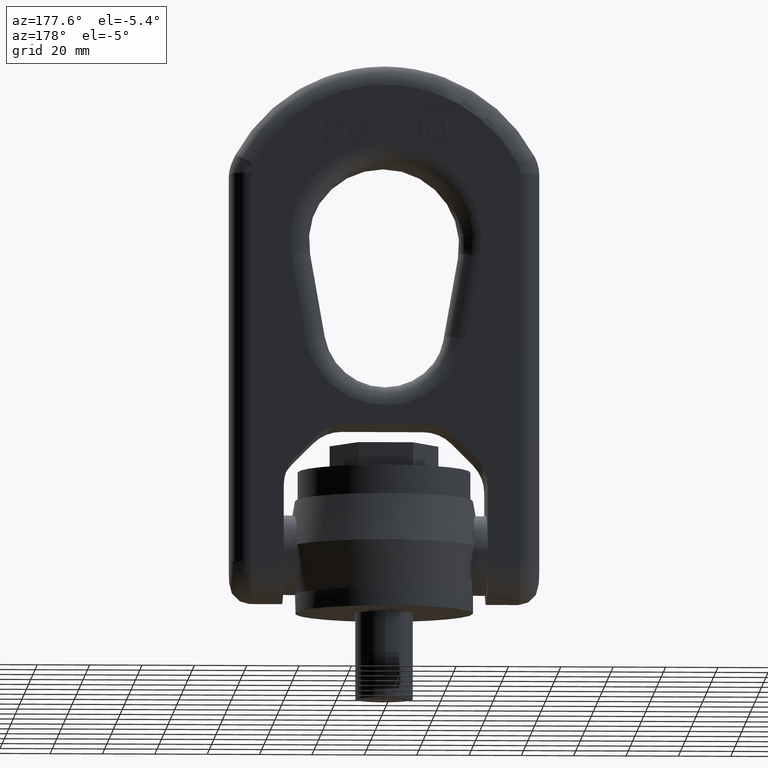
[diagram: clean part render]
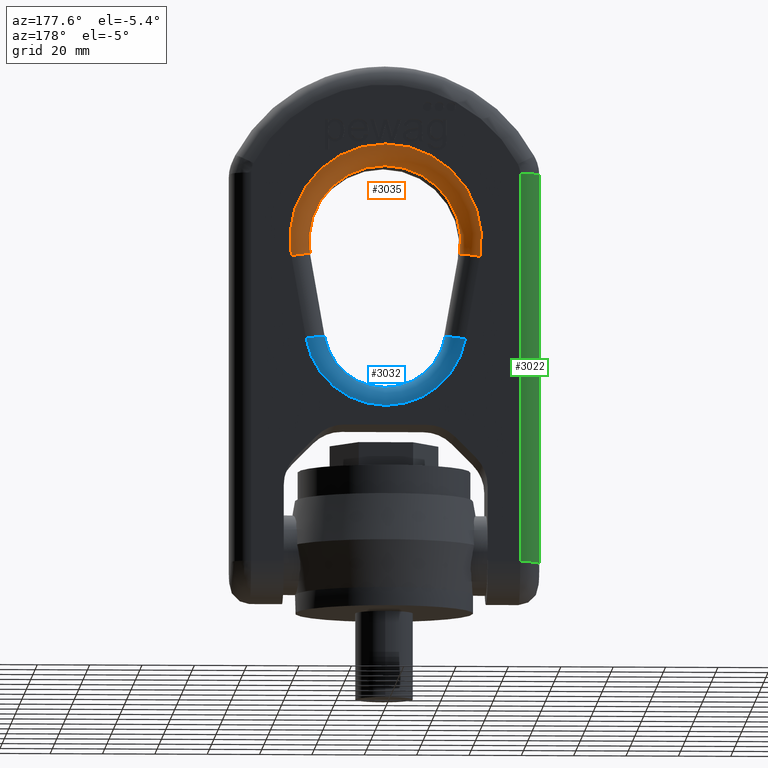
[diagram: same view with three faces highlighted in distinct colors, each labeled with its STEP entity id]
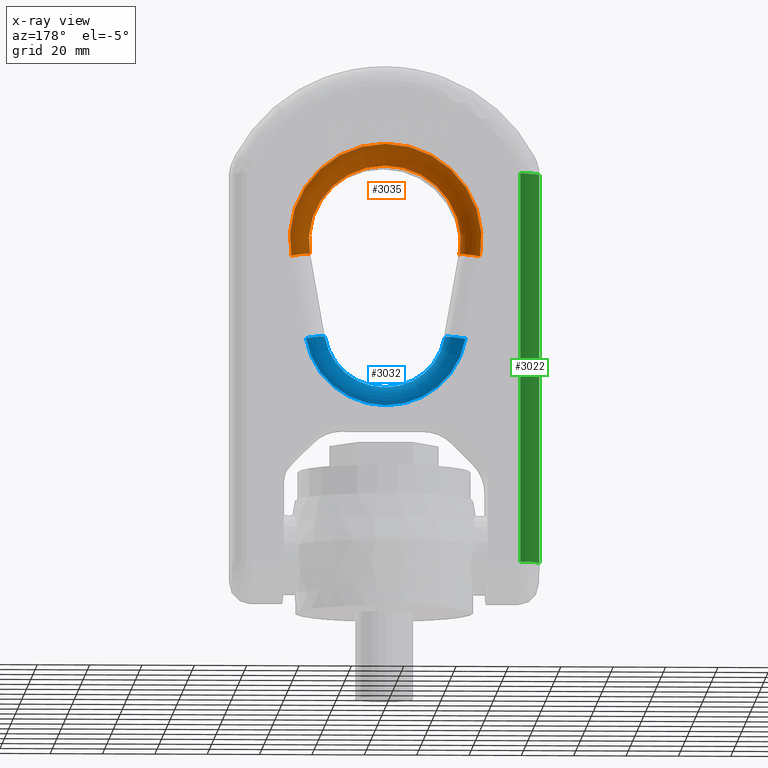
[diagram: x-ray of the same camera — body ghosted, the three highlighted faces saturated]
A machine part, auxiliary view with three faces highlighted in distinct colors.
The next image is the same camera in x-ray (body ghosted, the three faces saturated) — at least one of them is partly hidden behind the body in this view.
Their STEP definitions:

[orange] entity #3035 — the highlighted toroidal blend (fillet) surface has major radius 36.6 mm and minor (blend) radius 7.6 mm.
#204=TOROIDAL_SURFACE('',#6055,36.6,7.6);
#2660=FACE_OUTER_BOUND('',#3428,.T.);
#3035=ADVANCED_FACE('',(#2660),#204,.T.);
#3428=EDGE_LOOP('',(#4677,#4678,#4679,#4680));
#4677=ORIENTED_EDGE('',*,*,#5743,.T.);
#4678=ORIENTED_EDGE('',*,*,#5354,.F.);
#4679=ORIENTED_EDGE('',*,*,#5744,.T.);
#4680=ORIENTED_EDGE('',*,*,#5264,.F.);
#4828=VERTEX_POINT('',#7397);
#4829=VERTEX_POINT('',#7399);
#4913=VERTEX_POINT('',#7725);
#4915=VERTEX_POINT('',#7731);
#5264=EDGE_CURVE('',#4828,#4829,#5775,.T.);
#5354=EDGE_CURVE('',#4913,#4915,#5787,.T.);
#5743=EDGE_CURVE('',#4828,#4915,#5821,.T.);
#5744=EDGE_CURVE('',#4913,#4829,#5822,.T.);
#5775=CIRCLE('',#5882,36.6);
#5787=CIRCLE('',#5896,29.);
#5821=CIRCLE('',#6051,7.6);
#5822=CIRCLE('',#6053,7.6);
#5882=AXIS2_PLACEMENT_3D('',#7398,#6261,#6262);
#5896=AXIS2_PLACEMENT_3D('',#7730,#6333,#6334);
#6051=AXIS2_PLACEMENT_3D('',#9832,#6910,#6911);
#6053=AXIS2_PLACEMENT_3D('',#9834,#6914,#6915);
#6055=AXIS2_PLACEMENT_3D('',#9836,#6918,#6919);
#6261=DIRECTION('',(-2.34291072916505E-15,-1.,0.));
#6262=DIRECTION('',(-1.,2.32244399789245E-15,0.));
#6333=DIRECTION('',(2.34291072916505E-15,1.,0.));
#6334=DIRECTION('',(-1.,2.33290398493433E-15,0.));
#6910=DIRECTION('',(0.173648177666931,-4.75628795304343E-16,0.984807753012208));
#6911=DIRECTION('',(0.984807753012208,0.,-0.173648177666932));
#6914=DIRECTION('',(-0.173648177666931,3.17085863536229E-16,0.984807753012208));
#6915=DIRECTION('',(0.984807753012208,0.,0.173648177666932));
#6918=DIRECTION('',(2.34291072916505E-15,1.,0.));
#6919=DIRECTION('',(-1.,2.33520467919955E-15,0.));
#7397=CARTESIAN_POINT('',(36.0439637602469,15.1999999999999,135.64447669739));
#7398=CARTESIAN_POINT('',(1.78061215416544E-14,15.2,142.));
#7399=CARTESIAN_POINT('',(-36.0439637602468,15.2000000000001,135.64447669739));
#7725=CARTESIAN_POINT('',(-28.5594248373541,7.60000000000009,136.964202847659));
#7730=CARTESIAN_POINT('',(0.,7.59999999999998,142.));
#7731=CARTESIAN_POINT('',(28.5594248373541,7.59999999999992,136.964202847659));
#9832=CARTESIAN_POINT('',(36.0439637602468,7.59999999999992,135.64447669739));
#9834=CARTESIAN_POINT('',(-36.0439637602468,7.60000000000008,135.64447669739));
#9836=CARTESIAN_POINT('',(0.,7.6,142.));

[blue] entity #3032 — the highlighted toroidal blend (fillet) surface has major radius 30.9263 mm and minor (blend) radius 7.6 mm.
#203=TOROIDAL_SURFACE('',#6050,30.9262655562737,7.6);
#2657=FACE_OUTER_BOUND('',#3425,.T.);
#3032=ADVANCED_FACE('',(#2657),#203,.T.);
#3425=EDGE_LOOP('',(#4665,#4666,#4667,#4668));
#4665=ORIENTED_EDGE('',*,*,#5741,.F.);
#4666=ORIENTED_EDGE('',*,*,#5372,.F.);
#4667=ORIENTED_EDGE('',*,*,#5742,.F.);
#4668=ORIENTED_EDGE('',*,*,#5266,.F.);
#4827=VERTEX_POINT('',#7396);
#4830=VERTEX_POINT('',#7401);
#4912=VERTEX_POINT('',#7723);
#4917=VERTEX_POINT('',#7737);
#5266=EDGE_CURVE('',#4830,#4827,#5776,.T.);
#5372=EDGE_CURVE('',#4917,#4912,#5793,.T.);
#5741=EDGE_CURVE('',#4912,#4830,#5819,.T.);
#5742=EDGE_CURVE('',#4827,#4917,#5820,.T.);
#5776=CIRCLE('',#5883,30.9262655562737);
#5793=CIRCLE('',#5907,23.3262655562737);
#5819=CIRCLE('',#6048,7.6);
#5820=CIRCLE('',#6049,7.6);
#5883=AXIS2_PLACEMENT_3D('',#7402,#6264,#6265);
#5907=AXIS2_PLACEMENT_3D('',#7769,#6367,#6368);
#6048=AXIS2_PLACEMENT_3D('',#9829,#6904,#6905);
#6049=AXIS2_PLACEMENT_3D('',#9830,#6906,#6907);
#6050=AXIS2_PLACEMENT_3D('',#9831,#6908,#6909);
#6264=DIRECTION('',(-2.34291072916505E-15,-1.,0.));
#6265=DIRECTION('',(-1.,2.35587403394865E-15,0.));
#6367=DIRECTION('',(2.34291072916505E-15,1.,0.));
#6368=DIRECTION('',(-1.,2.34258627303386E-15,0.));
#6904=DIRECTION('',(-0.17364817766693,4.75628795304339E-16,0.984807753012208));
#6905=DIRECTION('',(0.984807753012208,0.,0.17364817766693));
#6906=DIRECTION('',(0.173648177666932,-3.96357329420287E-16,0.984807753012208));
#6907=DIRECTION('',(0.984807753012208,0.,-0.173648177666932));
#6908=DIRECTION('',(2.34291072916505E-15,1.,0.));
#6909=DIRECTION('',(-1.,2.34140577728808E-15,0.));
#7396=CARTESIAN_POINT('',(30.4564260915328,15.1999999999999,103.955975900383));
#7401=CARTESIAN_POINT('',(-30.4564260915328,15.2000000000001,103.955975900383));
#7402=CARTESIAN_POINT('',(1.78061215416544E-14,15.2,109.326265556274));
#7723=CARTESIAN_POINT('',(-22.97188716864,7.60000000000007,105.275702050652));
#7737=CARTESIAN_POINT('',(22.97188716864,7.59999999999996,105.275702050652));
#7769=CARTESIAN_POINT('',(0.,7.60000000000001,109.326265556274));
#9829=CARTESIAN_POINT('',(-30.4564260915328,7.60000000000007,103.955975900383));
#9830=CARTESIAN_POINT('',(30.4564260915328,7.59999999999993,103.955975900383));
#9831=CARTESIAN_POINT('',(0.,7.6,109.326265556274));

[green] entity #3022 — the highlighted cylindrical surface (edge-blend (fillet) strip) has radius 7.6 mm, axis along (-0, 0, -1).
#1823=LINE('',#7423,#2131);
#1865=LINE('',#7745,#2173);
#2131=VECTOR('',#6282,1.);
#2173=VECTOR('',#6346,1.);
#2647=FACE_OUTER_BOUND('',#3415,.T.);
#3022=ADVANCED_FACE('',(#2647),#3062,.T.);
#3062=CYLINDRICAL_SURFACE('',#6035,7.6);
#3415=EDGE_LOOP('',(#4625,#4626,#4627,#4628));
#4625=ORIENTED_EDGE('',*,*,#5729,.T.);
#4626=ORIENTED_EDGE('',*,*,#5361,.F.);
#4627=ORIENTED_EDGE('',*,*,#5732,.F.);
#4628=ORIENTED_EDGE('',*,*,#5278,.F.);
#4739=VERTEX_POINT('',#7058);
#4840=VERTEX_POINT('',#7424);
#4920=VERTEX_POINT('',#7744);
#4921=VERTEX_POINT('',#7746);
#5278=EDGE_CURVE('',#4739,#4840,#1823,.T.);
#5361=EDGE_CURVE('',#4920,#4921,#1865,.T.);
#5729=EDGE_CURVE('',#4739,#4921,#5807,.T.);
#5732=EDGE_CURVE('',#4840,#4920,#5810,.T.);
#5807=CIRCLE('',#6030,7.6);
#5810=CIRCLE('',#6034,7.6);
#6030=AXIS2_PLACEMENT_3D('',#9715,#6868,#6869);
#6034=AXIS2_PLACEMENT_3D('',#9735,#6876,#6877);
#6035=AXIS2_PLACEMENT_3D('',#9736,#6878,#6879);
#6282=DIRECTION('',(8.28524645242654E-17,-1.94115928071668E-31,1.));
#6346=DIRECTION('',(-8.28524645242654E-17,1.94115928071668E-31,-1.));
#6868=DIRECTION('',(0.,0.,1.));
#6869=DIRECTION('',(1.,0.,0.));
#6876=DIRECTION('',(0.,0.,1.));
#6877=DIRECTION('',(1.,0.,0.));
#6878=DIRECTION('',(-8.28524645242654E-17,1.94115928071668E-31,-1.));
#6879=DIRECTION('',(-1.,0.,0.));
#7058=CARTESIAN_POINT('',(-51.4,15.2000000000001,18.7000000000001));
#7423=CARTESIAN_POINT('',(-51.4,15.2000000000001,167.477855090295));
#7424=CARTESIAN_POINT('',(-51.4,15.2000000000001,167.477855090295));
#7744=CARTESIAN_POINT('',(-59.,7.60000000000012,167.477855090295));
#7745=CARTESIAN_POINT('',(-59.,7.60000000000012,18.7000000000001));
#7746=CARTESIAN_POINT('',(-59.,7.59999999999999,18.7000000000001));
#9715=CARTESIAN_POINT('',(-51.4,7.59999999999999,18.7000000000001));
#9735=CARTESIAN_POINT('',(-51.4,7.60000000000012,167.477855090295));
#9736=CARTESIAN_POINT('',(-51.4,7.60000000000012,144.197368421053));